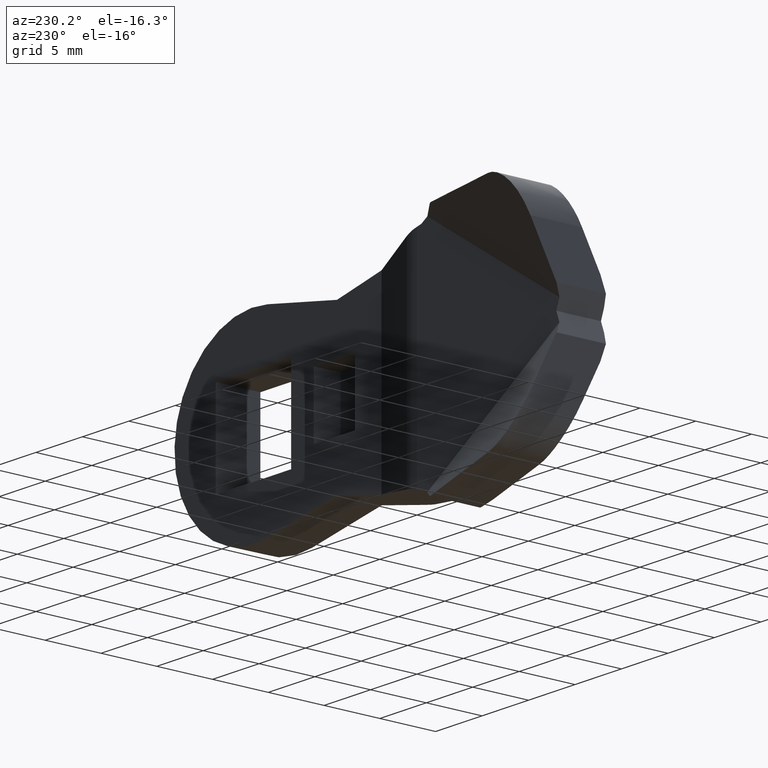
[diagram: clean part render]
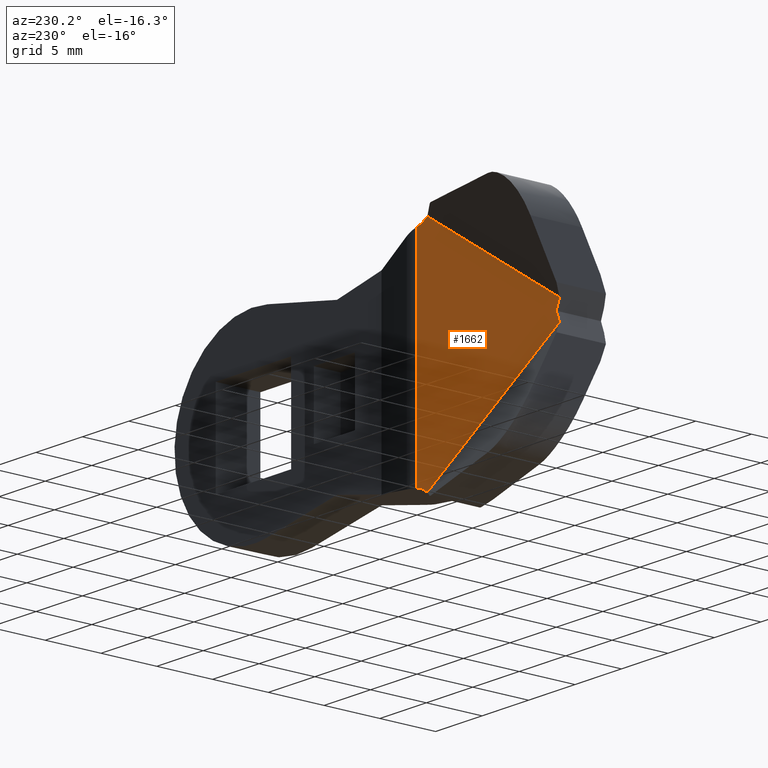
[diagram: same view with one face highlighted and labeled with its STEP entity id]
A machine part, auxiliary view. The second image highlights one B-rep face of the part: STEP entity #1662.
In plain terms, the highlighted face is a freeform B-spline surface patch.
Its self-contained STEP definition (entity closure, byte-faithful):
#176=CARTESIAN_POINT('',(-20.008839979364900,0.0,-9.400356302076329));
#177=VERTEX_POINT('',#176);
#193=CARTESIAN_POINT('',(-20.008839979364900,0.0,9.400356302076339));
#194=VERTEX_POINT('',#193);
#195=CARTESIAN_POINT('',(-20.008839979364900,0.0,9.400356302076339));
#196=CARTESIAN_POINT('',(-20.008839979364900,0.0,-9.400356302076329));
#197=QUASI_UNIFORM_CURVE('',1,(#195,#196),.UNSPECIFIED.,.F.,.U.);
#198=EDGE_CURVE('',#194,#177,#197,.T.);
#976=CARTESIAN_POINT('',(-35.000001662411087,0.0,1.136868E-013));
#977=VERTEX_POINT('',#976);
#983=CARTESIAN_POINT('',(-35.335924504340753,-8.673617E-016,-0.898662182766805));
#984=VERTEX_POINT('',#983);
#985=CARTESIAN_POINT('',(-35.000001662411087,0.0,1.136868E-013));
#986=CARTESIAN_POINT('',(-35.335924504340753,-8.673617E-016,-0.898662182766805));
#987=QUASI_UNIFORM_CURVE('',1,(#985,#986),.UNSPECIFIED.,.F.,.U.);
#988=EDGE_CURVE('',#977,#984,#987,.T.);
#1016=CARTESIAN_POINT('',(-35.335924504340753,-1.734723E-015,0.898662182766795));
#1017=VERTEX_POINT('',#1016);
#1023=CARTESIAN_POINT('',(-35.335924504340753,-1.734723E-015,0.898662182766795));
#1024=CARTESIAN_POINT('',(-35.000001662411087,0.0,1.136868E-013));
#1025=QUASI_UNIFORM_CURVE('',1,(#1023,#1024),.UNSPECIFIED.,.F.,.U.);
#1026=EDGE_CURVE('',#1017,#977,#1025,.T.);
#1113=CARTESIAN_POINT('',(-21.120222911500250,2.995498E-029,-9.901939858234620));
#1114=VERTEX_POINT('',#1113);
#1120=CARTESIAN_POINT('',(-20.465839481394600,0.0,-9.500000000000000));
#1121=VERTEX_POINT('',#1120);
#1122=CARTESIAN_POINT('',(-20.465839481394600,0.0,-9.500000000000000));
#1123=CARTESIAN_POINT('',(-21.120222911500250,2.995498E-029,-9.901939858234620));
#1124=QUASI_UNIFORM_CURVE('',1,(#1122,#1123),.UNSPECIFIED.,.F.,.U.);
#1125=EDGE_CURVE('',#1121,#1114,#1124,.T.);
#1147=CARTESIAN_POINT('',(-21.120222911500250,2.775558E-014,9.901939858234590));
#1148=VERTEX_POINT('',#1147);
#1163=CARTESIAN_POINT('',(-20.465839481394600,0.0,9.500000000000000));
#1164=VERTEX_POINT('',#1163);
#1170=CARTESIAN_POINT('',(-21.120222911500250,2.775558E-014,9.901939858234590));
#1171=CARTESIAN_POINT('',(-20.465839481394600,0.0,9.500000000000000));
#1172=QUASI_UNIFORM_CURVE('',1,(#1170,#1171),.UNSPECIFIED.,.F.,.U.);
#1173=EDGE_CURVE('',#1148,#1164,#1172,.T.);
#1327=CARTESIAN_POINT('',(-20.008839979364900,0.0,9.400356302076339));
#1328=CARTESIAN_POINT('',(-20.465839481394600,0.0,9.500000000000000));
#1329=QUASI_UNIFORM_CURVE('',1,(#1327,#1328),.UNSPECIFIED.,.F.,.U.);
#1330=EDGE_CURVE('',#194,#1164,#1329,.T.);
#1367=CARTESIAN_POINT('',(-20.465839481394600,0.0,-9.500000000000000));
#1368=CARTESIAN_POINT('',(-20.008839979364900,0.0,-9.400356302076329));
#1369=QUASI_UNIFORM_CURVE('',1,(#1367,#1368),.UNSPECIFIED.,.F.,.U.);
#1370=EDGE_CURVE('',#1121,#177,#1369,.T.);
#1585=CARTESIAN_POINT('',(-21.120222911500250,2.995498E-029,-9.901939858234620));
#1586=CARTESIAN_POINT('',(-35.335924504340753,-8.673617E-016,-0.898662182766805));
#1587=QUASI_UNIFORM_CURVE('',1,(#1585,#1586),.UNSPECIFIED.,.F.,.U.);
#1588=EDGE_CURVE('',#1114,#984,#1587,.T.);
#1618=CARTESIAN_POINT('',(-35.335924504340753,-1.734723E-015,0.898662182766795));
#1619=CARTESIAN_POINT('',(-21.120222911500250,2.775558E-014,9.901939858234590));
#1620=QUASI_UNIFORM_CURVE('',1,(#1618,#1619),.UNSPECIFIED.,.F.,.U.);
#1621=EDGE_CURVE('',#1017,#1148,#1620,.T.);
#1646=CARTESIAN_POINT('',(-36.101514018453749,0.0,10.891143169125790));
#1647=CARTESIAN_POINT('',(-36.101514018453749,0.0,-10.891142637944370));
#1648=CARTESIAN_POINT('',(-19.243252794843730,0.0,10.891143169125790));
#1649=CARTESIAN_POINT('',(-19.243252794843730,0.0,-10.891142637944370));
#1650=B_SPLINE_SURFACE_WITH_KNOTS('',1,1,((#1646,#1648),(#1647,#1649)),.UNSPECIFIED.,.F.,.F.,.U.,(2,2),(2,2),(0.0,21.782285807070160),(0.0,16.858261223610022),.UNSPECIFIED.);
#1651=ORIENTED_EDGE('',*,*,#1330,.F.);
#1652=ORIENTED_EDGE('',*,*,#198,.T.);
#1653=ORIENTED_EDGE('',*,*,#1370,.F.);
#1654=ORIENTED_EDGE('',*,*,#1125,.T.);
#1655=ORIENTED_EDGE('',*,*,#1588,.T.);
#1656=ORIENTED_EDGE('',*,*,#988,.F.);
#1657=ORIENTED_EDGE('',*,*,#1026,.F.);
#1658=ORIENTED_EDGE('',*,*,#1621,.T.);
#1659=ORIENTED_EDGE('',*,*,#1173,.T.);
#1660=EDGE_LOOP('',(#1651,#1652,#1653,#1654,#1655,#1656,#1657,#1658,#1659));
#1661=FACE_OUTER_BOUND('',#1660,.T.);
#1662=ADVANCED_FACE('',(#1661),#1650,.F.);